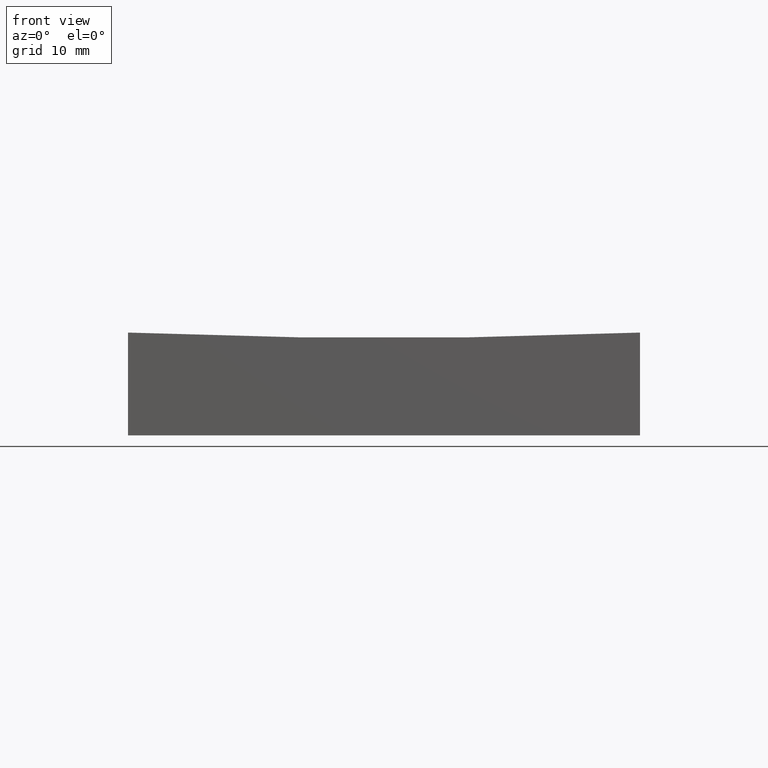
[diagram: clean part render]
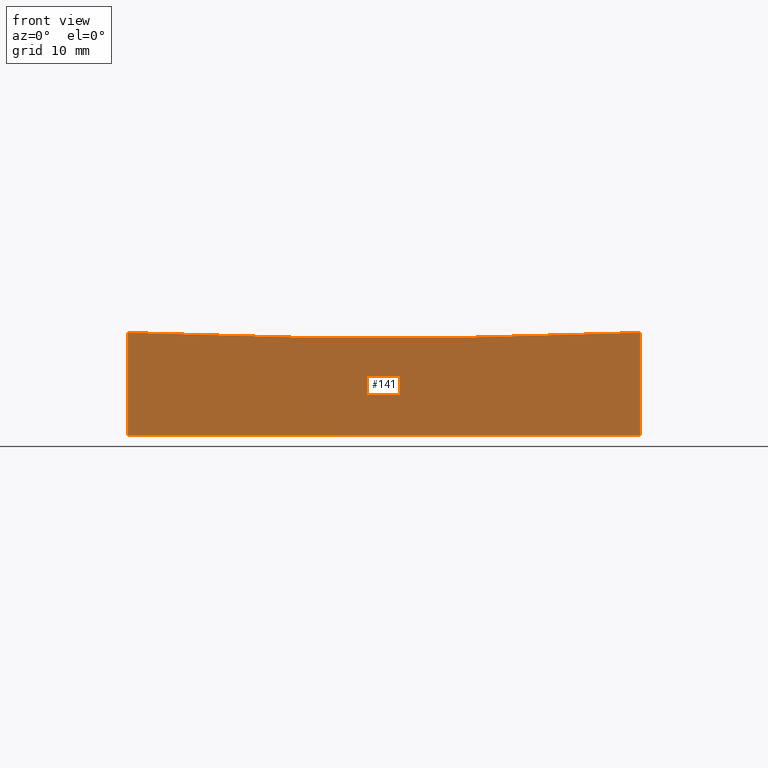
[diagram: same view with one face highlighted and labeled with its STEP entity id]
A machine part, front view. The second image highlights one B-rep face of the part: STEP entity #141.
In plain terms, the highlighted planar face has unit normal (0, 1, 0).
Its self-contained STEP definition (entity closure, byte-faithful):
#14 = DIRECTION ( 'NONE',  ( -0.0000000000000000000, -0.0000000000000000000, -1.000000000000000000 ) ) ;
#24 = VECTOR ( 'NONE', #66, 1000.000000000000000 ) ;
#29 = DIRECTION ( 'NONE',  ( 0.0000000000000000000, 1.000000000000000000, 0.0000000000000000000 ) ) ;
#30 = ORIENTED_EDGE ( 'NONE', *, *, #180, .T. ) ;
#31 = CARTESIAN_POINT ( 'NONE',  ( 25.00000000000000000, -25.00000000000000711, 10.04257246445305896 ) ) ;
#33 = ORIENTED_EDGE ( 'NONE', *, *, #110, .T. ) ;
#51 = DIRECTION ( 'NONE',  ( 0.0000000000000000000, -0.0000000000000000000, 1.000000000000000000 ) ) ;
#64 = CIRCLE ( 'NONE', #172, 599.4789404140898341 ) ;
#66 = DIRECTION ( 'NONE',  ( 1.000000000000000000, 0.0000000000000000000, 0.0000000000000000000 ) ) ;
#73 = FACE_OUTER_BOUND ( 'NONE', #125, .T. ) ;
#77 = CARTESIAN_POINT ( 'NONE',  ( -25.00000000000000000, -25.00000000000000711, 0.0000000000000000000 ) ) ;
#83 = VECTOR ( 'NONE', #14, 1000.000000000000000 ) ;
#84 = LINE ( 'NONE', #158, #24 ) ;
#86 = CARTESIAN_POINT ( 'NONE',  ( -25.00000000000000000, -25.00000000000000711, 50.00000000000000000 ) ) ;
#89 = CARTESIAN_POINT ( 'NONE',  ( 25.00000000000000000, -25.00000000000000711, 0.0000000000000000000 ) ) ;
#90 = LINE ( 'NONE', #230, #83 ) ;
#91 = VERTEX_POINT ( 'NONE', #89 ) ;
#106 = ORIENTED_EDGE ( 'NONE', *, *, #200, .T. ) ;
#108 = LINE ( 'NONE', #86, #188 ) ;
#110 = EDGE_CURVE ( 'NONE', #251, #91, #84, .T. ) ;
#124 = DIRECTION ( 'NONE',  ( -0.0000000000000000000, -0.0000000000000000000, -1.000000000000000000 ) ) ;
#125 = EDGE_LOOP ( 'NONE', ( #127, #106, #30, #33 ) ) ;
#127 = ORIENTED_EDGE ( 'NONE', *, *, #154, .F. ) ;
#133 = CARTESIAN_POINT ( 'NONE',  ( 7.458099006807380620E-14, -25.00000000000000711, 609.0000000000000000 ) ) ;
#134 = DIRECTION ( 'NONE',  ( 0.0000000000000000000, 1.000000000000000000, 0.0000000000000000000 ) ) ;
#141 = ADVANCED_FACE ( 'NONE', ( #73 ), #163, .F. ) ;
#154 = EDGE_CURVE ( 'NONE', #179, #91, #90, .T. ) ;
#158 = CARTESIAN_POINT ( 'NONE',  ( -25.00000000000000000, -25.00000000000000711, 0.0000000000000000000 ) ) ;
#163 = PLANE ( 'NONE',  #197 ) ;
#169 = DIRECTION ( 'NONE',  ( 0.0000000000000000000, 0.0000000000000000000, 1.000000000000000000 ) ) ;
#172 = AXIS2_PLACEMENT_3D ( 'NONE', #133, #134, #169 ) ;
#179 = VERTEX_POINT ( 'NONE', #31 ) ;
#180 = EDGE_CURVE ( 'NONE', #234, #251, #108, .T. ) ;
#185 = CARTESIAN_POINT ( 'NONE',  ( -25.00000000000000000, -25.00000000000000711, 50.00000000000000000 ) ) ;
#188 = VECTOR ( 'NONE', #124, 1000.000000000000000 ) ;
#197 = AXIS2_PLACEMENT_3D ( 'NONE', #185, #29, #51 ) ;
#200 = EDGE_CURVE ( 'NONE', #179, #234, #64, .T. ) ;
#218 = CARTESIAN_POINT ( 'NONE',  ( -25.00000000000000000, -25.00000000000000711, 10.04257246445305896 ) ) ;
#230 = CARTESIAN_POINT ( 'NONE',  ( 25.00000000000000000, -25.00000000000000711, 50.00000000000000000 ) ) ;
#234 = VERTEX_POINT ( 'NONE', #218 ) ;
#251 = VERTEX_POINT ( 'NONE', #77 ) ;